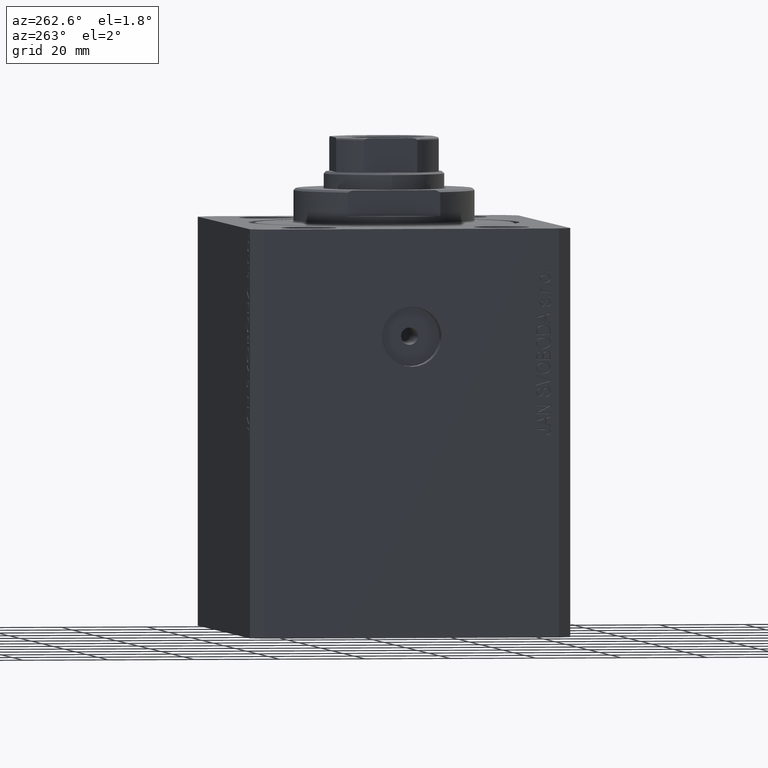
[diagram: clean part render]
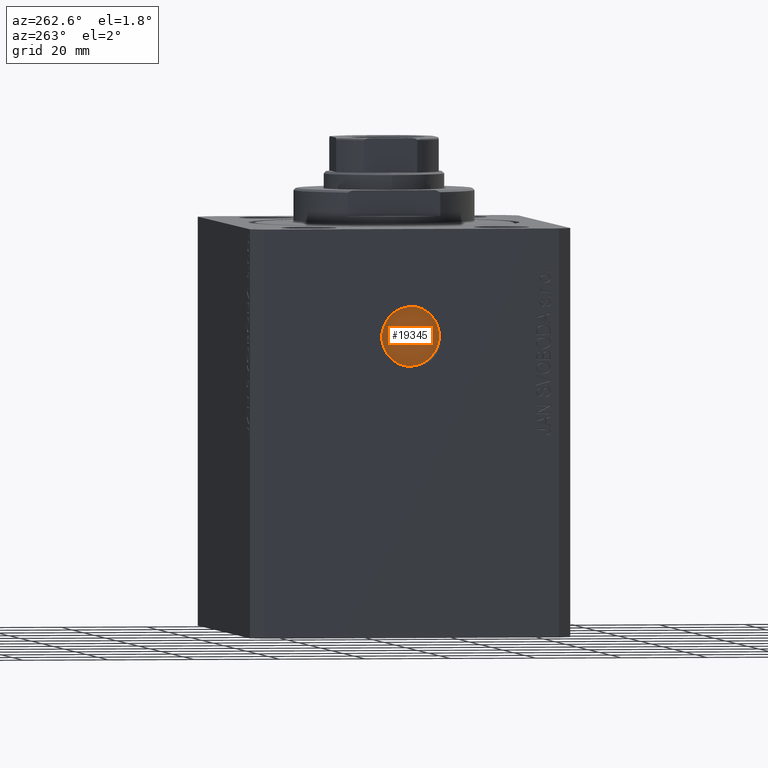
[diagram: same view with one face highlighted and labeled with its STEP entity id]
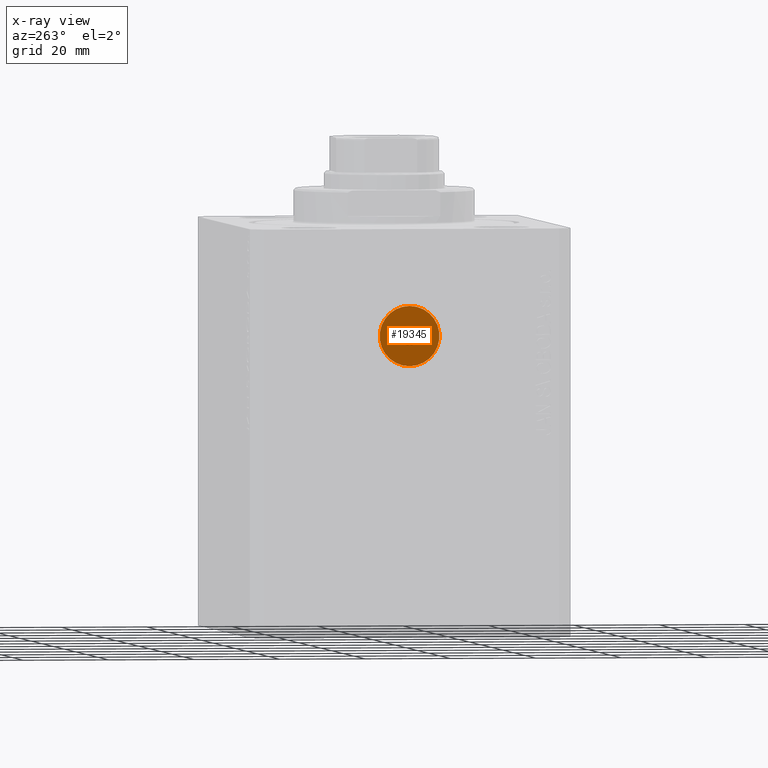
[diagram: x-ray of the same camera — body ghosted, the highlighted face saturated]
A machine part, auxiliary view. The second image highlights one B-rep face of the part: STEP entity #19345.
The next image is the same camera in x-ray: the body ghosted, the highlighted face saturated — about 0% of this face is hidden behind the body in this view.
In plain terms, the highlighted planar face has unit normal (-1, 0, 0).
Its self-contained STEP definition (entity closure, byte-faithful):
#1180 = AXIS2_PLACEMENT_3D ( 'NONE', #30276, #12920, #23761 ) ;
#3526 = DIRECTION ( 'NONE',  ( 0.000000000000000000, 0.000000000000000000, 1.000000000000000000 ) ) ;
#5269 = EDGE_CURVE ( 'NONE', #43491, #28705, #13072, .T. ) ;
#6925 = AXIS2_PLACEMENT_3D ( 'NONE', #41010, #10369, #10142 ) ;
#7251 = CIRCLE ( 'NONE', #12293, 6.999999999999999112 ) ;
#7985 = CARTESIAN_POINT ( 'NONE',  ( -46.00000000000001421, -1.005636797667714365E-14, -18.00000000000000000 ) ) ;
#10046 = DIRECTION ( 'NONE',  ( 0.000000000000000000, 0.000000000000000000, 1.000000000000000000 ) ) ;
#10142 = DIRECTION ( 'NONE',  ( 0.000000000000000000, 0.000000000000000000, 1.000000000000000000 ) ) ;
#10369 = DIRECTION ( 'NONE',  ( -1.000000000000000000, 0.000000000000000000, 0.000000000000000000 ) ) ;
#12293 = AXIS2_PLACEMENT_3D ( 'NONE', #21309, #41124, #41799 ) ;
#12920 = DIRECTION ( 'NONE',  ( -1.000000000000000000, 0.000000000000000000, 0.000000000000000000 ) ) ;
#13072 = CIRCLE ( 'NONE', #16052, 1.999999999999998224 ) ;
#13605 = ORIENTED_EDGE ( 'NONE', *, *, #37444, .T. ) ;
#15097 = CIRCLE ( 'NONE', #35956, 1.999999999999998224 ) ;
#15473 = CARTESIAN_POINT ( 'NONE',  ( -46.00000000000001421, -9.811438616847673355E-15, -26.99999999999999645 ) ) ;
#16052 = AXIS2_PLACEMENT_3D ( 'NONE', #30188, #23218, #3526 ) ;
#19345 = ADVANCED_FACE ( 'NONE', ( #20529, #41701 ), #38306, .T. ) ;
#20529 = FACE_BOUND ( 'NONE', #40599, .T. ) ;
#21309 = CARTESIAN_POINT ( 'NONE',  ( -46.00000000000001421, -1.005636797667714365E-14, -24.99999999999999645 ) ) ;
#22670 = ORIENTED_EDGE ( 'NONE', *, *, #25486, .T. ) ;
#23135 = VERTEX_POINT ( 'NONE', #7985 ) ;
#23218 = DIRECTION ( 'NONE',  ( -1.000000000000000000, 0.000000000000000000, 0.000000000000000000 ) ) ;
#23761 = DIRECTION ( 'NONE',  ( 0.000000000000000000, 0.000000000000000000, 1.000000000000000000 ) ) ;
#24744 = DIRECTION ( 'NONE',  ( -1.000000000000000000, 0.000000000000000000, 0.000000000000000000 ) ) ;
#25486 = EDGE_CURVE ( 'NONE', #38916, #23135, #29995, .T. ) ;
#26128 = CARTESIAN_POINT ( 'NONE',  ( -46.00000000000001421, -1.005636797667714365E-14, -24.99999999999999645 ) ) ;
#26718 = EDGE_LOOP ( 'NONE', ( #13605, #22670 ) ) ;
#28705 = VERTEX_POINT ( 'NONE', #35733 ) ;
#28932 = ORIENTED_EDGE ( 'NONE', *, *, #35308, .F. ) ;
#29995 = CIRCLE ( 'NONE', #1180, 6.999999999999999112 ) ;
#30188 = CARTESIAN_POINT ( 'NONE',  ( -46.00000000000001421, -1.005636797667714365E-14, -24.99999999999999645 ) ) ;
#30276 = CARTESIAN_POINT ( 'NONE',  ( -46.00000000000001421, -1.005636797667714365E-14, -24.99999999999999645 ) ) ;
#30769 = ORIENTED_EDGE ( 'NONE', *, *, #5269, .F. ) ;
#35308 = EDGE_CURVE ( 'NONE', #28705, #43491, #15097, .T. ) ;
#35733 = CARTESIAN_POINT ( 'NONE',  ( -46.00000000000001421, -1.005636797667714365E-14, -23.00000000000000000 ) ) ;
#35956 = AXIS2_PLACEMENT_3D ( 'NONE', #26128, #24744, #10046 ) ;
#37444 = EDGE_CURVE ( 'NONE', #23135, #38916, #7251, .T. ) ;
#38306 = PLANE ( 'NONE',  #6925 ) ;
#38916 = VERTEX_POINT ( 'NONE', #39186 ) ;
#39186 = CARTESIAN_POINT ( 'NONE',  ( -46.00000000000001421, -9.199115217273997614E-15, -32.00000000000000000 ) ) ;
#40599 = EDGE_LOOP ( 'NONE', ( #28932, #30769 ) ) ;
#41010 = CARTESIAN_POINT ( 'NONE',  ( -46.00000000000001421, -1.005636797667714365E-14, -24.99999999999999645 ) ) ;
#41124 = DIRECTION ( 'NONE',  ( -1.000000000000000000, 0.000000000000000000, 0.000000000000000000 ) ) ;
#41701 = FACE_OUTER_BOUND ( 'NONE', #26718, .T. ) ;
#41799 = DIRECTION ( 'NONE',  ( 0.000000000000000000, 0.000000000000000000, 1.000000000000000000 ) ) ;
#43491 = VERTEX_POINT ( 'NONE', #15473 ) ;